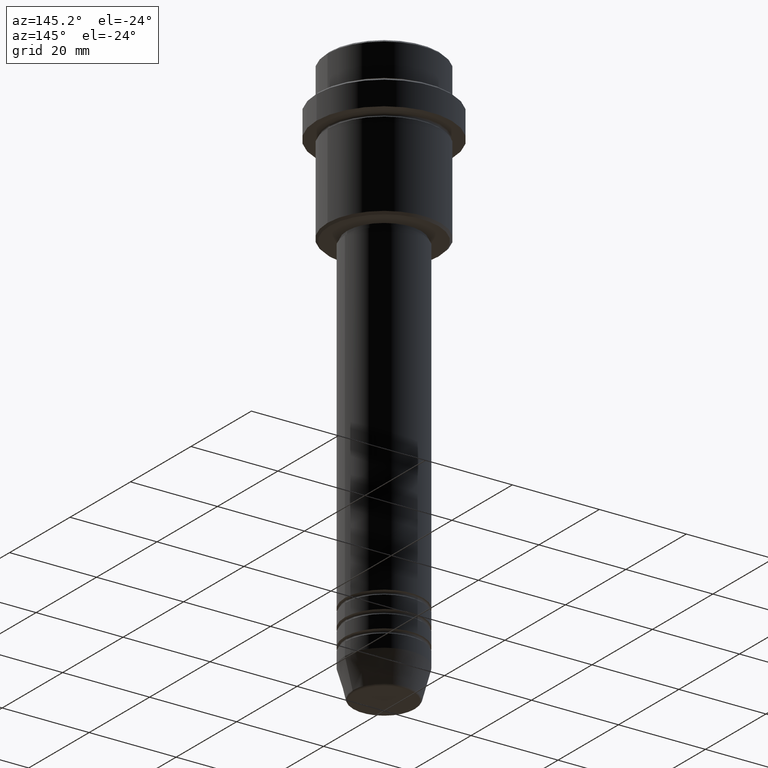
[diagram: clean part render]
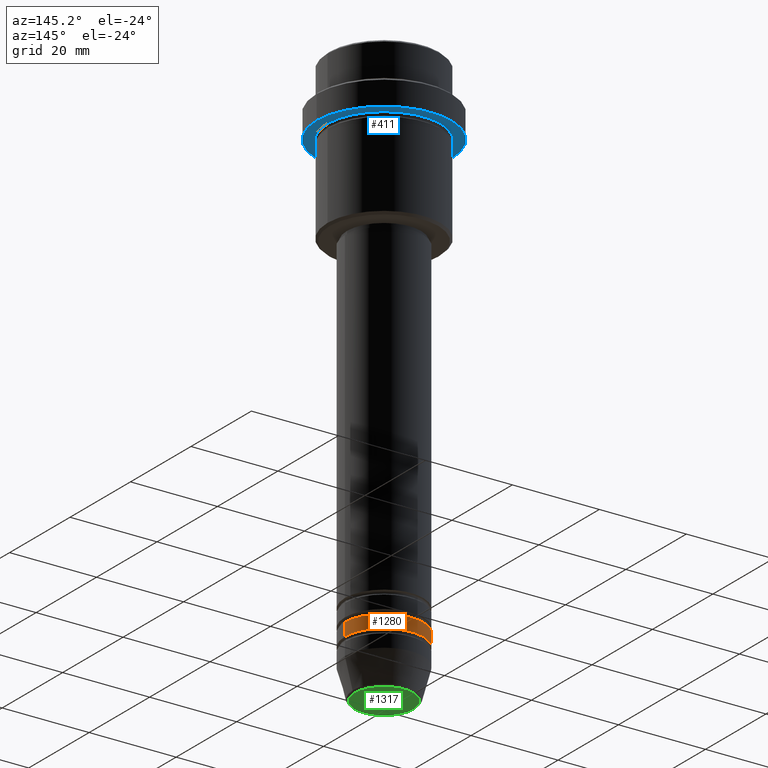
[diagram: same view with three faces highlighted in distinct colors, each labeled with its STEP entity id]
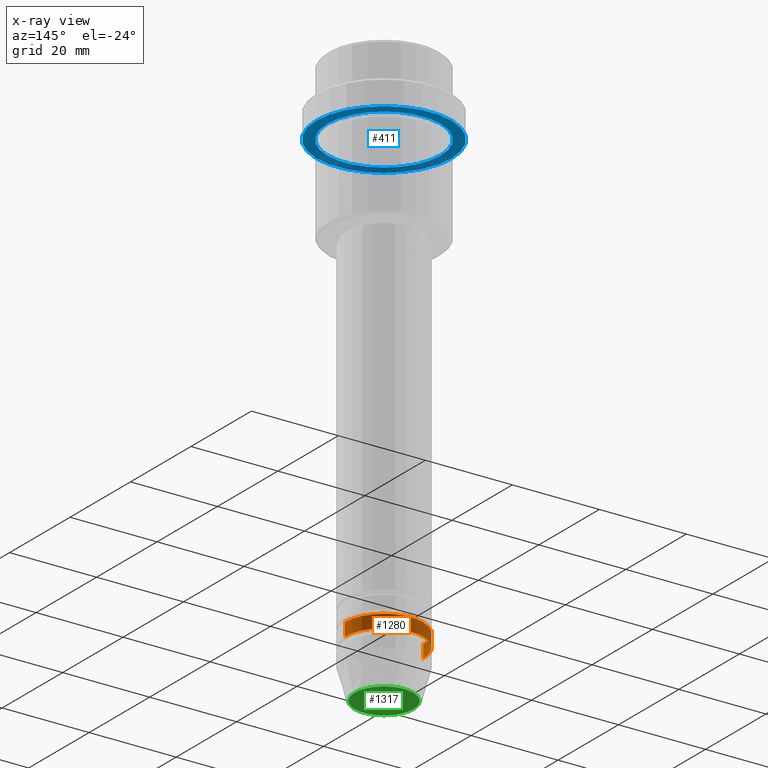
[diagram: x-ray of the same camera — body ghosted, the three highlighted faces saturated]
A machine part, auxiliary view with three faces highlighted in distinct colors.
The next image is the same camera in x-ray (body ghosted, the three faces saturated) — at least one of them is partly hidden behind the body in this view.
Their STEP definitions:

[orange] entity #1280 — the highlighted cylindrical surface (partial cylindrical patch) has radius 9 mm, axis along (-0, -0, 1).
#55 = CARTESIAN_POINT ( 'NONE',  ( -9.000000000000000000, 1.102182119232617714E-15, -119.9999999999998579 ) ) ;
#82 = DIRECTION ( 'NONE',  ( -0.000000000000000000, -0.000000000000000000, 1.000000000000000000 ) ) ;
#95 = CARTESIAN_POINT ( 'NONE',  ( 0.000000000000000000, 0.000000000000000000, -119.9999999999998579 ) ) ;
#107 = ORIENTED_EDGE ( 'NONE', *, *, #1065, .F. ) ;
#169 = EDGE_CURVE ( 'NONE', #1167, #806, #886, .T. ) ;
#201 = DIRECTION ( 'NONE',  ( -0.000000000000000000, -0.000000000000000000, 1.000000000000000000 ) ) ;
#205 = CARTESIAN_POINT ( 'NONE',  ( 0.000000000000000000, 0.000000000000000000, 0.000000000000000000 ) ) ;
#223 = CARTESIAN_POINT ( 'NONE',  ( 9.000000000000000000, 0.000000000000000000, -119.9999999999998579 ) ) ;
#284 = LINE ( 'NONE', #376, #527 ) ;
#290 = CIRCLE ( 'NONE', #1102, 9.000000000000000000 ) ;
#313 = FACE_OUTER_BOUND ( 'NONE', #345, .T. ) ;
#326 = AXIS2_PLACEMENT_3D ( 'NONE', #205, #1306, #653 ) ;
#345 = EDGE_LOOP ( 'NONE', ( #369, #1013, #553, #107 ) ) ;
#369 = ORIENTED_EDGE ( 'NONE', *, *, #857, .T. ) ;
#376 = CARTESIAN_POINT ( 'NONE',  ( 9.000000000000000000, 0.000000000000000000, 0.000000000000000000 ) ) ;
#392 = CARTESIAN_POINT ( 'NONE',  ( 0.000000000000000000, 0.000000000000000000, -116.9999999999998863 ) ) ;
#423 = VERTEX_POINT ( 'NONE', #223 ) ;
#520 = VERTEX_POINT ( 'NONE', #1134 ) ;
#527 = VECTOR ( 'NONE', #844, 1000.000000000000000 ) ;
#536 = DIRECTION ( 'NONE',  ( 1.000000000000000000, 0.000000000000000000, 0.000000000000000000 ) ) ;
#553 = ORIENTED_EDGE ( 'NONE', *, *, #1027, .F. ) ;
#626 = CARTESIAN_POINT ( 'NONE',  ( -9.000000000000000000, 1.102182119232617714E-15, 0.000000000000000000 ) ) ;
#653 = DIRECTION ( 'NONE',  ( 1.000000000000000000, 0.000000000000000000, 0.000000000000000000 ) ) ;
#764 = CYLINDRICAL_SURFACE ( 'NONE', #326, 9.000000000000000000 ) ;
#806 = VERTEX_POINT ( 'NONE', #1407 ) ;
#844 = DIRECTION ( 'NONE',  ( -0.000000000000000000, -0.000000000000000000, 1.000000000000000000 ) ) ;
#847 = AXIS2_PLACEMENT_3D ( 'NONE', #95, #201, #536 ) ;
#857 = EDGE_CURVE ( 'NONE', #423, #1167, #1052, .T. ) ;
#886 = LINE ( 'NONE', #626, #889 ) ;
#889 = VECTOR ( 'NONE', #82, 1000.000000000000000 ) ;
#1013 = ORIENTED_EDGE ( 'NONE', *, *, #169, .T. ) ;
#1027 = EDGE_CURVE ( 'NONE', #520, #806, #290, .T. ) ;
#1052 = CIRCLE ( 'NONE', #847, 9.000000000000000000 ) ;
#1065 = EDGE_CURVE ( 'NONE', #423, #520, #284, .T. ) ;
#1102 = AXIS2_PLACEMENT_3D ( 'NONE', #392, #1359, #1155 ) ;
#1134 = CARTESIAN_POINT ( 'NONE',  ( 9.000000000000000000, 0.000000000000000000, -116.9999999999998863 ) ) ;
#1155 = DIRECTION ( 'NONE',  ( 1.000000000000000000, 0.000000000000000000, 0.000000000000000000 ) ) ;
#1167 = VERTEX_POINT ( 'NONE', #55 ) ;
#1280 = ADVANCED_FACE ( 'NONE', ( #313 ), #764, .T. ) ;
#1306 = DIRECTION ( 'NONE',  ( -0.000000000000000000, -0.000000000000000000, 1.000000000000000000 ) ) ;
#1359 = DIRECTION ( 'NONE',  ( -0.000000000000000000, -0.000000000000000000, 1.000000000000000000 ) ) ;
#1407 = CARTESIAN_POINT ( 'NONE',  ( -9.000000000000000000, 1.102182119232617714E-15, -116.9999999999998863 ) ) ;

[blue] entity #411 — the highlighted planar face has unit normal (0, 0, -1).
#44 = CARTESIAN_POINT ( 'NONE',  ( 0.000000000000000000, 0.000000000000000000, -15.00000000000000178 ) ) ;
#76 = CARTESIAN_POINT ( 'NONE',  ( 12.99999999999999467, 1.592040838891558504E-15, -15.00000000000000000 ) ) ;
#154 = CARTESIAN_POINT ( 'NONE',  ( -15.50000000000000000, 1.898202538678397557E-15, -15.00000000000000178 ) ) ;
#202 = DIRECTION ( 'NONE',  ( 0.000000000000000000, 0.000000000000000000, -1.000000000000000000 ) ) ;
#227 = DIRECTION ( 'NONE',  ( -0.000000000000000000, -0.000000000000000000, 1.000000000000000000 ) ) ;
#254 = DIRECTION ( 'NONE',  ( -0.000000000000000000, -0.000000000000000000, 1.000000000000000000 ) ) ;
#312 = VERTEX_POINT ( 'NONE', #76 ) ;
#320 = CARTESIAN_POINT ( 'NONE',  ( 0.000000000000000000, 0.000000000000000000, -15.00000000000000000 ) ) ;
#340 = AXIS2_PLACEMENT_3D ( 'NONE', #1004, #341, #1014 ) ;
#341 = DIRECTION ( 'NONE',  ( -0.000000000000000000, -0.000000000000000000, 1.000000000000000000 ) ) ;
#375 = ORIENTED_EDGE ( 'NONE', *, *, #922, .F. ) ;
#411 = ADVANCED_FACE ( 'NONE', ( #994, #1401 ), #419, .T. ) ;
#419 = PLANE ( 'NONE',  #871 ) ;
#425 = VERTEX_POINT ( 'NONE', #562 ) ;
#434 = EDGE_CURVE ( 'NONE', #1202, #312, #665, .T. ) ;
#555 = DIRECTION ( 'NONE',  ( -1.000000000000000000, 0.000000000000000000, -0.000000000000000000 ) ) ;
#562 = CARTESIAN_POINT ( 'NONE',  ( 15.50000000000000000, 0.000000000000000000, -15.00000000000000178 ) ) ;
#571 = CIRCLE ( 'NONE', #1211, 15.50000000000000000 ) ;
#576 = EDGE_CURVE ( 'NONE', #1154, #425, #571, .T. ) ;
#618 = CIRCLE ( 'NONE', #340, 15.50000000000000000 ) ;
#637 = ORIENTED_EDGE ( 'NONE', *, *, #434, .T. ) ;
#665 = CIRCLE ( 'NONE', #1051, 12.99999999999999467 ) ;
#677 = DIRECTION ( 'NONE',  ( 1.000000000000000000, 0.000000000000000000, 0.000000000000000000 ) ) ;
#746 = CARTESIAN_POINT ( 'NONE',  ( -12.99999999999999467, 0.000000000000000000, -15.00000000000000000 ) ) ;
#785 = EDGE_LOOP ( 'NONE', ( #637, #997 ) ) ;
#808 = DIRECTION ( 'NONE',  ( -1.000000000000000000, 0.000000000000000000, 0.000000000000000000 ) ) ;
#871 = AXIS2_PLACEMENT_3D ( 'NONE', #1193, #202, #555 ) ;
#922 = EDGE_CURVE ( 'NONE', #425, #1154, #618, .T. ) ;
#983 = ORIENTED_EDGE ( 'NONE', *, *, #576, .F. ) ;
#994 = FACE_BOUND ( 'NONE', #785, .T. ) ;
#997 = ORIENTED_EDGE ( 'NONE', *, *, #1234, .T. ) ;
#1004 = CARTESIAN_POINT ( 'NONE',  ( 0.000000000000000000, 0.000000000000000000, -15.00000000000000178 ) ) ;
#1014 = DIRECTION ( 'NONE',  ( 1.000000000000000000, 0.000000000000000000, 0.000000000000000000 ) ) ;
#1051 = AXIS2_PLACEMENT_3D ( 'NONE', #1330, #254, #808 ) ;
#1070 = CIRCLE ( 'NONE', #1269, 12.99999999999999467 ) ;
#1098 = EDGE_LOOP ( 'NONE', ( #375, #983 ) ) ;
#1154 = VERTEX_POINT ( 'NONE', #154 ) ;
#1193 = CARTESIAN_POINT ( 'NONE',  ( 0.000000000000000000, 15.50000000000000000, -15.00000000000000000 ) ) ;
#1202 = VERTEX_POINT ( 'NONE', #746 ) ;
#1211 = AXIS2_PLACEMENT_3D ( 'NONE', #44, #227, #677 ) ;
#1234 = EDGE_CURVE ( 'NONE', #312, #1202, #1070, .T. ) ;
#1269 = AXIS2_PLACEMENT_3D ( 'NONE', #320, #1288, #1413 ) ;
#1288 = DIRECTION ( 'NONE',  ( -0.000000000000000000, -0.000000000000000000, 1.000000000000000000 ) ) ;
#1330 = CARTESIAN_POINT ( 'NONE',  ( 0.000000000000000000, 0.000000000000000000, -15.00000000000000000 ) ) ;
#1401 = FACE_OUTER_BOUND ( 'NONE', #1098, .T. ) ;
#1413 = DIRECTION ( 'NONE',  ( -1.000000000000000000, 0.000000000000000000, 0.000000000000000000 ) ) ;

[green] entity #1317 — the highlighted planar face has unit normal (0, -0, 1).
#8 = EDGE_LOOP ( 'NONE', ( #1124, #1149 ) ) ;
#61 = DIRECTION ( 'NONE',  ( 0.000000000000000000, -0.000000000000000000, 1.000000000000000000 ) ) ;
#70 = DIRECTION ( 'NONE',  ( 1.000000000000000000, 0.000000000000000000, 0.000000000000000000 ) ) ;
#148 = CARTESIAN_POINT ( 'NONE',  ( 0.000000000000000000, 0.000000000000000000, -131.0000000000000000 ) ) ;
#165 = VERTEX_POINT ( 'NONE', #1348 ) ;
#209 = AXIS2_PLACEMENT_3D ( 'NONE', #851, #1267, #70 ) ;
#281 = DIRECTION ( 'NONE',  ( 1.000000000000000000, 0.000000000000000000, 0.000000000000000000 ) ) ;
#311 = CIRCLE ( 'NONE', #783, 6.740692158992653837 ) ;
#339 = VERTEX_POINT ( 'NONE', #1184 ) ;
#493 = PLANE ( 'NONE',  #1380 ) ;
#599 = DIRECTION ( 'NONE',  ( 0.000000000000000000, 0.000000000000000000, -1.000000000000000000 ) ) ;
#697 = CIRCLE ( 'NONE', #209, 6.740692158992653837 ) ;
#783 = AXIS2_PLACEMENT_3D ( 'NONE', #148, #599, #1036 ) ;
#851 = CARTESIAN_POINT ( 'NONE',  ( 0.000000000000000000, 0.000000000000000000, -131.0000000000000000 ) ) ;
#1036 = DIRECTION ( 'NONE',  ( 1.000000000000000000, 0.000000000000000000, 0.000000000000000000 ) ) ;
#1123 = EDGE_CURVE ( 'NONE', #339, #165, #311, .T. ) ;
#1124 = ORIENTED_EDGE ( 'NONE', *, *, #1398, .T. ) ;
#1145 = FACE_OUTER_BOUND ( 'NONE', #8, .T. ) ;
#1149 = ORIENTED_EDGE ( 'NONE', *, *, #1123, .T. ) ;
#1184 = CARTESIAN_POINT ( 'NONE',  ( -6.740692158992653837, 8.550696569392679765E-16, -131.0000000000000000 ) ) ;
#1267 = DIRECTION ( 'NONE',  ( 0.000000000000000000, 0.000000000000000000, -1.000000000000000000 ) ) ;
#1317 = ADVANCED_FACE ( 'NONE', ( #1145 ), #493, .F. ) ;
#1348 = CARTESIAN_POINT ( 'NONE',  ( 6.740692158992653837, 0.000000000000000000, -131.0000000000000000 ) ) ;
#1357 = CARTESIAN_POINT ( 'NONE',  ( 0.000000000000000000, 0.000000000000000000, -131.0000000000000000 ) ) ;
#1380 = AXIS2_PLACEMENT_3D ( 'NONE', #1357, #61, #281 ) ;
#1398 = EDGE_CURVE ( 'NONE', #165, #339, #697, .T. ) ;